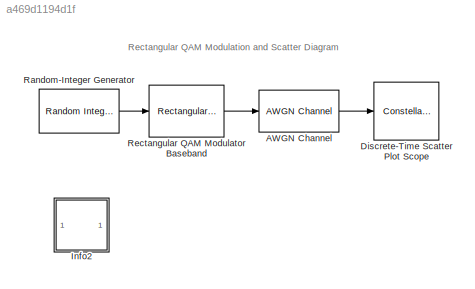
MODEL slx_a469d1194d1f
KIND model
BLOCK [Reference] AWGN Channel  REF=commchan3/AWGN
Channel
  EbNodB = 10
  EsNodB = 20
  InputProcessing = Columns as channels (frame based)
  Ports = [1, 1]
  Ps = 1
  SNRdB = 10
  SourceBlock = commchan3/AWGN\nChannel
  SourceType = AWGN Channel
  Tsym = .1
  UserDataPersistent = on
  bitsPerSym = 1
  noiseMode = Signal to noise ratio  (Es/No)
  seed = 1
  variance = 1
BLOCK [ConstellationDiagram] Discrete-Time Scatter Plot Scope
  Diagnostics = AllowInheritedTsInSrc
  Ports = [1]
  Tag = ScatterPlot
BLOCK [SubSystem] Info2
  AncestorBlock = commblksprivate/Info
  OpenFcn = helpview([docroot '/toolbox/comm/comm.map'], 'doc_qam_scatter')
  Ports = []
  RequestExecContextInheritance = off
BLOCK [Reference] Random-Integer Generator  REF=commrandsrc2/Random Integer
Generator
  Ports = [0, 1]
  SourceBlock = commrandsrc2/Random Integer\nGenerator
  SourceType = Random Integer Generator
  Ts = .1
  frameBased = off
  mul = 16
  orient = off
  outDataType = double
  sampPerFrame = 1
  seed = 392
BLOCK [Reference] Rectangular QAM Modulator Baseband  REF=commdigbbndam3/Rectangular QAM
Modulator
Baseband
  AvgPow = 1
  Enc = Binary
  InType = Integer
  M = 16
  Mapping = [0:15]
  MinDist = 2
  PeakPow = 1
  Ph = 0
  Ports = [1, 1]
  PowType = Peak Power
  SourceBlock = commdigbbndam3/Rectangular QAM\nModulator\nBaseband
  SourceType = Rectangular QAM Modulator Baseband
  outDtype = double
  outFracLen = 15
  outFracLenMode = Best precision
  outUDDataType = sfix(16)
  outWordLen = 16
ANNOTATION (root): Rectangular QAM Modulation and Scatter Diagram
LINE AWGN Channel:1 -> Discrete-Time Scatter Plot Scope:1
LINE Random-Integer Generator:1 -> Rectangular QAM Modulator Baseband:1
LINE Rectangular QAM Modulator Baseband:1 -> AWGN Channel:1
